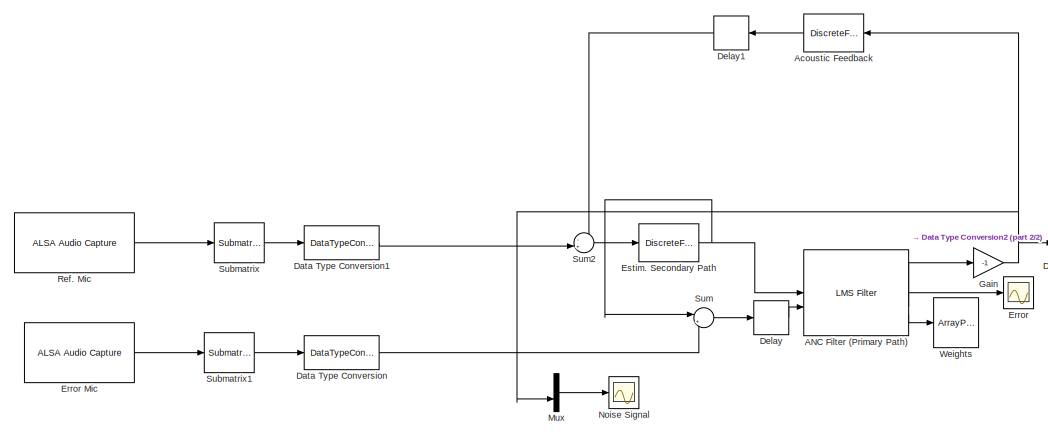
[diagram: root canvas - part 1/2, left side, full height]
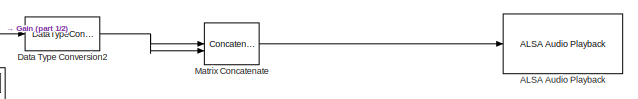
[diagram: root canvas - part 2/2, middle right region]
MODEL slx_d6b6209a61bf
KIND model
CONFIG AbsTol = auto
CONFIG EnableMultiTasking = on
CONFIG FixedStep = auto
CONFIG MaxStep = auto
CONFIG MinStep = auto
CONFIG RelTol = 1e-3
CONFIG SampleTimeConstraint = Unconstrained
CONFIG SolverName = FixedStepAuto
CONFIG StartTime = 0.0
CONFIG StopTime = 10.0
BLOCK [Reference] ALSA Audio Playback  REF=raspberrypiAVlib/ALSA Audio Playback
  SourceBlock = raspberrypiAVlib/ALSA Audio Playback
  SourceType = codertarget.raspi.internal.RaspiALSAAudioPlayback
BLOCK [Reference] ANC Filter (Primary Path)  REF=dspadpt3/LMS Filter
  SourceBlock = dspadpt3/LMS Filter
  SourceType = LMS Filter
BLOCK [DiscreteFir] Acoustic Feedback
  Coefficients = [16.8174603174603\n0.00101384917886881\n0.000954360584855603\n0.000888247390767520\n0.000820254005891841\n0.000751185706834925\n0.000681319336974037\n0.000610798738766888\n0.000539722162688470\n0.000468169027558330\n0.000396209948252177\n0.000323911048721091\n0.000251336008752878\n0.000178547106236695\n0.000105605774000373\n3.25729052471416e-05\n-4.04909788093705e-05\n-0.000113525640503992\n-0.000186471084645148\n-0...<+303ch>
  InputPortMap = u0
  OutputPortMap = o0
BLOCK [DataTypeConversion] Data Type Conversion
  OutDataTypeStr = double
  RndMeth = Floor
  SaturateOnIntegerOverflow = off
BLOCK [DataTypeConversion] Data Type Conversion1
  OutDataTypeStr = double
  RndMeth = Floor
  SaturateOnIntegerOverflow = off
BLOCK [DataTypeConversion] Data Type Conversion2
  OutDataTypeStr = int16
  RndMeth = Floor
  SaturateOnIntegerOverflow = off
BLOCK [Delay] Delay
  DelayLength = 1
  InitialCondition = 0
  InputPortMap = u0
BLOCK [Delay] Delay1
  DelayLength = 1
  InitialCondition = 0
  InputPortMap = u0
BLOCK [Scope] Error
  Commented = on
  Floating = off
  NumInputPorts = 1
  ScopeSpecificationString = Simulink.scopes.TimeScopeBlockCfg('CurrentConfiguration', extmgr.ConfigurationSet(extmgr.Configuration('Core','General UI',true),extmgr.Configuration('Core','Source UI',true),extmgr.Configuration('Sources','WiredSimulink',true),extmgr.Configuration('Visuals','Time Domain',true,'SerializedDisplays',{struct('MinYLimReal','-0.85607','MaxYLimReal','0.79034','YLabelReal','','MinYLimMag','0.00000','MaxY...<+1400ch>
BLOCK [Reference] Error Mic  REF=raspberrypiAVlib/ALSA Audio Capture
  SourceBlock = raspberrypiAVlib/ALSA Audio Capture
  SourceType = codertarget.raspi.internal.RaspiALSAAudioCapture
BLOCK [DiscreteFir] Estim. Secondary Path
  Coefficients = [16.8174603174603\n0.0140278628596976\n0.0121185247768609\n0.0107843209997475\n0.0100770558200791\n0.00943784604944740\n0.00886504054968210\n0.00829013530587448\n0.00771615278356869\n0.00714409944106634\n0.00656485179661988\n0.00598541185793895\n0.00539709096066405\n0.00480528386267804\n0.00420773058548222\n0.00360674513336359\n0.00300320476502875\n0.00239703543148670\n0.00179006462081619\n0.00118107418170664\n0.0005...<+269ch>
  InputPortMap = u0
  OutputPortMap = o0
BLOCK [Gain] Gain
  Gain = -1
BLOCK [Concatenate] Matrix Concatenate
  ConcatenateDimension = 2
  Mode = Multidimensional array
BLOCK [Mux] Mux
  Commented = on
  DisplayOption = bar
  Inputs = 2
BLOCK [Scope] Noise Signal
  Commented = on
  Floating = off
  NumInputPorts = 1
  ScopeSpecificationString = Simulink.scopes.TimeScopeBlockCfg('CurrentConfiguration', extmgr.ConfigurationSet(extmgr.Configuration('Core','General UI',true),extmgr.Configuration('Core','Source UI',true),extmgr.Configuration('Sources','WiredSimulink',true,'DataLoggingVariableName','ScopeData2'),extmgr.Configuration('Visuals','Time Domain',true,'SerializedDisplays',{struct('MinYLimReal','-2.29184','MaxYLimReal','2.29185','YLab...<+1457ch>
BLOCK [Reference] Ref. Mic  REF=raspberrypiAVlib/ALSA Audio Capture
  SourceBlock = raspberrypiAVlib/ALSA Audio Capture
  SourceType = codertarget.raspi.internal.RaspiALSAAudioCapture
BLOCK [Reference] Submatrix  REF=matrix_library/Submatrix
  LibrarySourceBlock = simulink/Matrix\nOperations/Submatrix
  SourceBlock = matrix_library/Submatrix
  SourceType = Submatrix
BLOCK [Reference] Submatrix1  REF=matrix_library/Submatrix
  LibrarySourceBlock = simulink/Matrix\nOperations/Submatrix
  SourceBlock = matrix_library/Submatrix
  SourceType = Submatrix
BLOCK [Sum] Sum
  Inputs = |++
BLOCK [Sum] Sum2
  Inputs = -+|
BLOCK [ArrayPlot] Weights
  Commented = on
  GraphicalSettings = {"Style":{"BackgroundColor":[0.12941176470588237,0.12941176470588237,0.12941176470588237],"AxesColor":[0.07058823529411765,0.07058823529411765,0.07058823529411765],"LabelsColor":[0.8509803921568627,0.8509803921568627,0.8509803921568627],"PreserveColors":false,"Visible":[true],"LineStyle":["-"],"LineColor":[[1,1,0.06666666666666667]],"LineWidth":[1.5],"Marker":["o"],"FontSize":"small"},"Cursors":{"...<+534ch>
  ScopeFrameLocation = window
  WasSavedAsWebScope = on
  WindowPosition = [368.000000,182.000000,800.000000,500.000000,]
  YLimits = [-0.0551 0.1188]
LINE ANC Filter (Primary Path):1 -> Gain:1
LINE ANC Filter (Primary Path):2 -> Error:1
LINE ANC Filter (Primary Path):3 -> Weights:1
LINE Acoustic Feedback:1 -> Delay1:1
LINE Data Type Conversion1:1 -> Sum2:2
NET Data Type Conversion2:1 -> Matrix Concatenate:1, Matrix Concatenate:2
LINE Data Type Conversion:1 -> Sum:2
LINE Delay1:1 -> Sum2:1
LINE Delay:1 -> ANC Filter (Primary Path):2
LINE Error Mic:1 -> Submatrix1:1
NET Estim. Secondary Path:1 -> ANC Filter (Primary Path):1, Sum:1
NET Gain:1 -> Acoustic Feedback:1, Data Type Conversion2:1, Mux:2
LINE Matrix Concatenate:1 -> ALSA Audio Playback:1
LINE Mux:1 -> Noise Signal:1
LINE Ref. Mic:1 -> Submatrix:1
LINE Submatrix1:1 -> Data Type Conversion:1
LINE Submatrix:1 -> Data Type Conversion1:1
LINE Sum2:1 -> Estim. Secondary Path:1
LINE Sum:1 -> Delay:1
note: NET lines group one-source signal fan-out (src -> all destinations, sorted); 1:1 wires keep LINE
